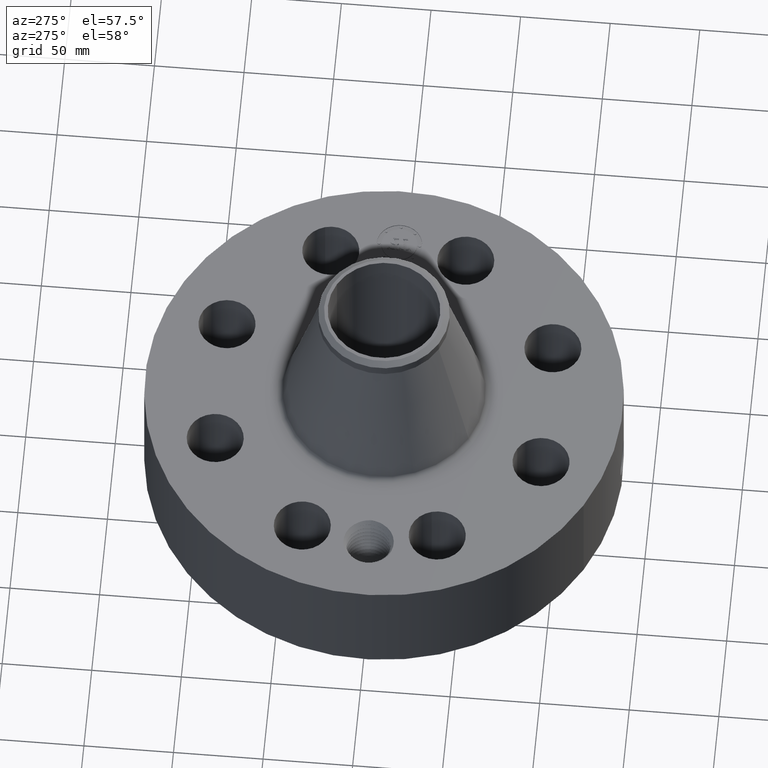
[diagram: clean part render]
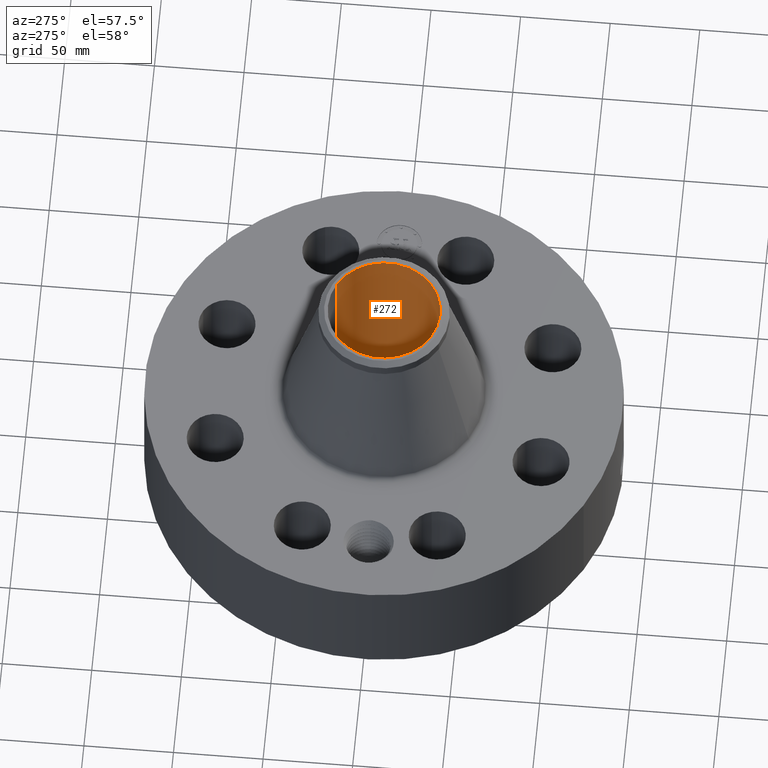
[diagram: same view with one face highlighted and labeled with its STEP entity id]
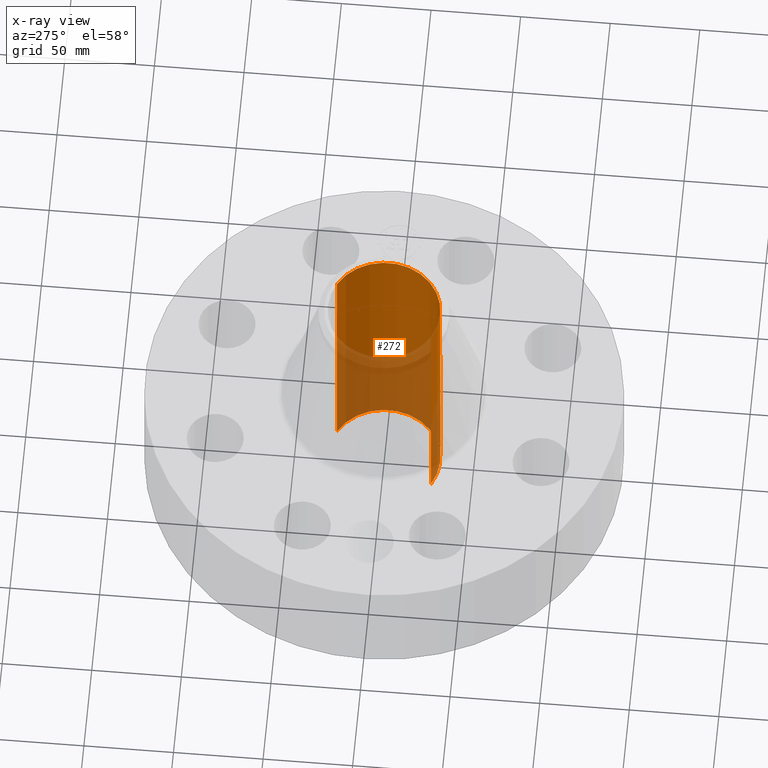
[diagram: x-ray of the same camera — body ghosted, the highlighted face saturated]
A machine part, auxiliary view. The second image highlights one B-rep face of the part: STEP entity #272.
The next image is the same camera in x-ray: the body ghosted, the highlighted face saturated — about 44% of this face is hidden behind the body in this view.
In plain terms, the highlighted cylindrical surface (partial cylindrical patch) has radius 31.3563 mm, axis along (0, 0, -1).
Its self-contained STEP definition (entity closure, byte-faithful):
#232=AXIS2_PLACEMENT_3D('Cylinder Axis2P3D',#229,#230,#231) ;
#236=AXIS2_PLACEMENT_3D('Circle Axis2P3D',#234,#235,$) ;
#252=AXIS2_PLACEMENT_3D('Circle Axis2P3D',#250,#251,$) ;
#81=CARTESIAN_POINT('Control Point',(0.109697820237,-1.22961645981,0.690071807677)) ;
#82=CARTESIAN_POINT('Control Point',(0.103060754706,-1.2302085726,0.677922740715)) ;
#83=CARTESIAN_POINT('Control Point',(0.0947439453638,-1.23090540039,0.66669642558)) ;
#84=CARTESIAN_POINT('Control Point',(0.0849163186305,-1.23164628288,0.656698835884)) ;
#85=CARTESIAN_POINT('Control Point',(0.0516790469086,-1.23375369136,0.63118113847)) ;
#86=CARTESIAN_POINT('Control Point',(0.00988464133936,-1.23496616076,0.62062887495)) ;
#87=CARTESIAN_POINT('Control Point',(-0.0193499689613,-1.23483637073,0.621705764004)) ;
#88=CARTESIAN_POINT('Control Point',(-0.0602724287585,-1.23333251926,0.635297395887)) ;
#89=CARTESIAN_POINT('Control Point',(-0.0915615104663,-1.23116135672,0.663204700394)) ;
#90=CARTESIAN_POINT('Control Point',(-0.100642724727,-1.23042853678,0.673920337883)) ;
#91=CARTESIAN_POINT('Control Point',(-0.120590024828,-1.22867081866,0.705490596068)) ;
#92=CARTESIAN_POINT('Control Point',(-0.128081302631,-1.22782736886,0.742745849862)) ;
#93=CARTESIAN_POINT('Control Point',(-0.127185109596,-1.22793040869,0.766762096386)) ;
#94=CARTESIAN_POINT('Control Point',(-0.120785294943,-1.22862731251,0.789632706015)) ;
#95=CARTESIAN_POINT('Control Point',(-0.109697820237,-1.22961645981,0.809928192329)) ;
#96=CARTESIAN_POINT('Vertex',(0.109697820237,-1.22961645981,0.690071807677)) ;
#98=CARTESIAN_POINT('Vertex',(-0.109697820237,-1.22961645981,0.809928192329)) ;
#206=CARTESIAN_POINT('Control Point',(-0.109697820237,-1.22961645981,0.809928192329)) ;
#207=CARTESIAN_POINT('Control Point',(-0.103060754704,-1.2302085726,0.822077259295)) ;
#208=CARTESIAN_POINT('Control Point',(-0.0947439453585,-1.23090540039,0.833303574433)) ;
#209=CARTESIAN_POINT('Control Point',(-0.0849163186374,-1.23164628288,0.843301164117)) ;
#210=CARTESIAN_POINT('Control Point',(-0.0516790469135,-1.23375369136,0.868818861534)) ;
#211=CARTESIAN_POINT('Control Point',(-0.00988464134107,-1.23496616076,0.879371125055)) ;
#212=CARTESIAN_POINT('Control Point',(0.0193499689637,-1.23483637073,0.878294236001)) ;
#213=CARTESIAN_POINT('Control Point',(0.0602724287624,-1.23333251926,0.864702604118)) ;
#214=CARTESIAN_POINT('Control Point',(0.0915615104709,-1.23116135672,0.836795299607)) ;
#215=CARTESIAN_POINT('Control Point',(0.100642724725,-1.23042853678,0.826079662128)) ;
#216=CARTESIAN_POINT('Control Point',(0.120590024829,-1.22867081866,0.794509403938)) ;
#217=CARTESIAN_POINT('Control Point',(0.128081302632,-1.22782736886,0.757254150138)) ;
#218=CARTESIAN_POINT('Control Point',(0.127185109597,-1.22793040869,0.733237903626)) ;
#219=CARTESIAN_POINT('Control Point',(0.120785294944,-1.22862731251,0.710367293994)) ;
#220=CARTESIAN_POINT('Control Point',(0.109697820237,-1.22961645981,0.690071807677)) ;
#229=CARTESIAN_POINT('Axis2P3D Location',(0.,0.,2.99750000001)) ;
#234=CARTESIAN_POINT('Axis2P3D Location',(0.,0.,5.99500000002)) ;
#238=CARTESIAN_POINT('Vertex',(0.591850827409,1.08337567266,5.99500000002)) ;
#240=CARTESIAN_POINT('Vertex',(-0.591850827409,-1.08337567266,5.99500000002)) ;
#243=CARTESIAN_POINT('Line Origine',(0.591850827409,1.08337567266,2.99750000001)) ;
#247=CARTESIAN_POINT('Vertex',(0.591850827409,1.08337567266,-5.59482469102E-015)) ;
#250=CARTESIAN_POINT('Axis2P3D Location',(0.,0.,-6.71378962923E-015)) ;
#254=CARTESIAN_POINT('Vertex',(-0.591850827409,-1.08337567266,-5.59482469102E-015)) ;
#257=CARTESIAN_POINT('Line Origine',(-0.591850827409,-1.08337567266,2.99750000001)) ;
#230=DIRECTION('Axis2P3D Direction',(0.,0.,-0.0393700787402)) ;
#231=DIRECTION('Axis2P3D XDirection',(-0.0188750212049,-0.0345504945626,0.)) ;
#235=DIRECTION('Axis2P3D Direction',(0.,0.,-0.0393700787402)) ;
#244=DIRECTION('Vector Direction',(0.,0.,-0.0393700787402)) ;
#251=DIRECTION('Axis2P3D Direction',(0.,0.,-0.0393700787402)) ;
#258=DIRECTION('Vector Direction',(0.,0.,-0.0393700787402)) ;
#245=VECTOR('Line Direction',#244,0.0393700787402) ;
#259=VECTOR('Line Direction',#258,0.0393700787402) ;
#263=ORIENTED_EDGE('',*,*,#242,.F.) ;
#264=ORIENTED_EDGE('',*,*,#249,.T.) ;
#265=ORIENTED_EDGE('',*,*,#256,.T.) ;
#266=ORIENTED_EDGE('',*,*,#261,.F.) ;
#269=ORIENTED_EDGE('',*,*,#100,.F.) ;
#270=ORIENTED_EDGE('',*,*,#221,.F.) ;
#271=FACE_BOUND('',#268,.T.) ;
#272=ADVANCED_FACE('PartBody',(#267,#271),#233,.F.) ;
#80=B_SPLINE_CURVE_WITH_KNOTS('',5,(#81,#82,#83,#84,#85,#86,#87,#88,#89,#90,#91,#92,#93,#94,#95),.UNSPECIFIED.,.F.,.U.,(6,3,3,3,6),(0.,2.48868847732,7.46428276844,9.95756086933,14.1150112388),.UNSPECIFIED.) ;
#205=B_SPLINE_CURVE_WITH_KNOTS('',5,(#206,#207,#208,#209,#210,#211,#212,#213,#214,#215,#216,#217,#218,#219,#220),.UNSPECIFIED.,.F.,.U.,(6,3,3,3,6),(0.,2.48868847812,7.46428276906,9.95756087047,14.1150112405),.UNSPECIFIED.) ;
#237=CIRCLE('generated circle',#236,1.2345) ;
#253=CIRCLE('generated circle',#252,1.2345) ;
#233=CYLINDRICAL_SURFACE('generated cylinder',#232,1.2345) ;
#100=EDGE_CURVE('',#97,#99,#80,.T.) ;
#221=EDGE_CURVE('',#99,#97,#205,.T.) ;
#242=EDGE_CURVE('',#239,#241,#237,.T.) ;
#249=EDGE_CURVE('',#239,#248,#246,.T.) ;
#256=EDGE_CURVE('',#248,#255,#253,.T.) ;
#261=EDGE_CURVE('',#241,#255,#260,.T.) ;
#262=EDGE_LOOP('',(#263,#264,#265,#266)) ;
#268=EDGE_LOOP('',(#269,#270)) ;
#267=FACE_OUTER_BOUND('',#262,.T.) ;
#246=LINE('Line',#243,#245) ;
#260=LINE('Line',#257,#259) ;
#97=VERTEX_POINT('',#96) ;
#99=VERTEX_POINT('',#98) ;
#239=VERTEX_POINT('',#238) ;
#241=VERTEX_POINT('',#240) ;
#248=VERTEX_POINT('',#247) ;
#255=VERTEX_POINT('',#254) ;